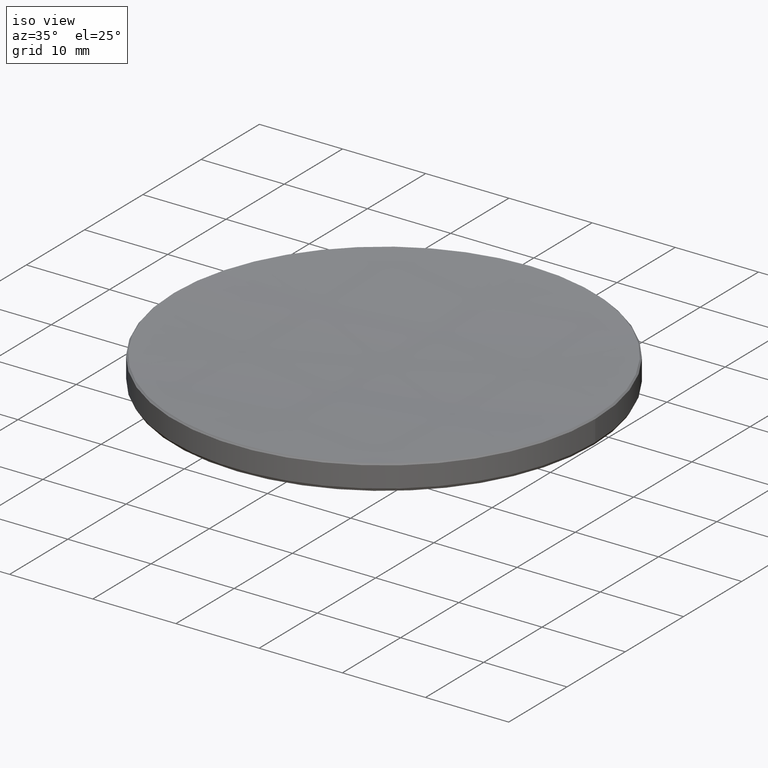
[diagram: clean part render]
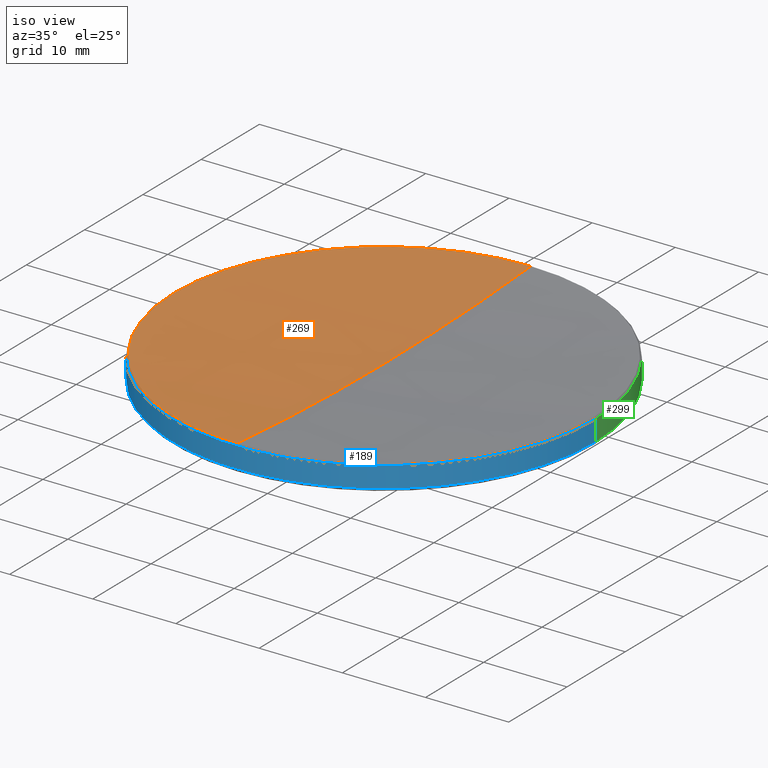
[diagram: same view with three faces highlighted in distinct colors, each labeled with its STEP entity id]
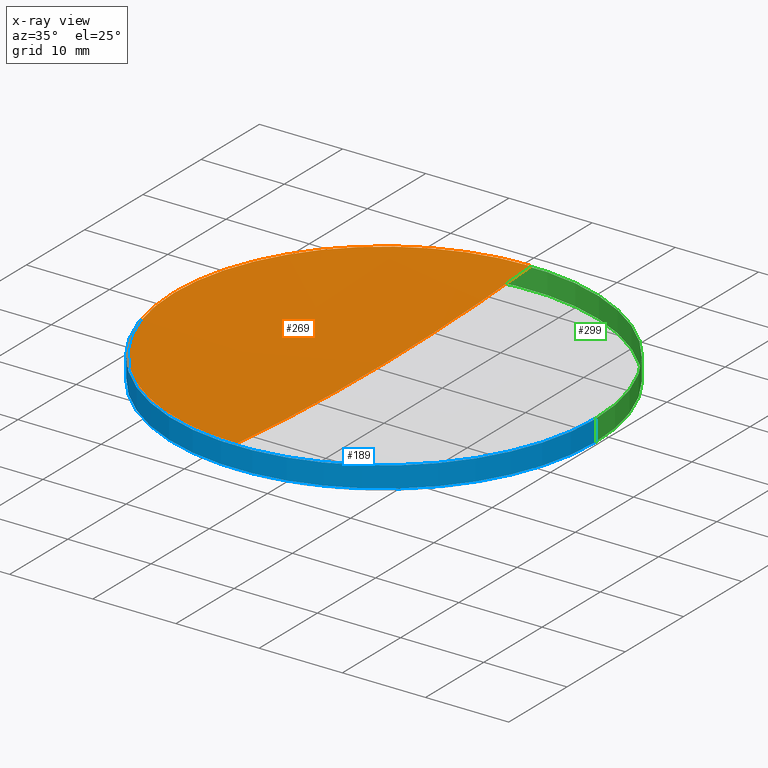
[diagram: x-ray of the same camera — body ghosted, the three highlighted faces saturated]
A machine part, iso view with three faces highlighted in distinct colors.
The next image is the same camera in x-ray (body ghosted, the three faces saturated) — at least one of them is partly hidden behind the body in this view.
Their STEP definitions:

[orange] entity #269 — the highlighted spherical surface has radius 327.59 mm.
#5 = CARTESIAN_POINT ( 'NONE',  ( -25.21438242854474154, 0.000000000000000000, 16.98561757145522577 ) ) ;
#6 = SPHERICAL_SURFACE ( 'NONE', #11, 327.5899999999999750 ) ;
#10 = ORIENTED_EDGE ( 'NONE', *, *, #64, .T. ) ;
#11 = AXIS2_PLACEMENT_3D ( 'NONE', #226, #180, #76 ) ;
#12 = ORIENTED_EDGE ( 'NONE', *, *, #121, .T. ) ;
#14 = EDGE_CURVE ( 'NONE', #105, #297, #69, .T. ) ;
#27 = FACE_OUTER_BOUND ( 'NONE', #187, .T. ) ;
#50 = AXIS2_PLACEMENT_3D ( 'NONE', #241, #75, #145 ) ;
#64 = EDGE_CURVE ( 'NONE', #105, #230, #251, .T. ) ;
#68 = CARTESIAN_POINT ( 'NONE',  ( 0.000000000000000000, 25.21438242854472023, 16.98561757145519735 ) ) ;
#69 = CIRCLE ( 'NONE', #107, 327.5899999999999750 ) ;
#75 = DIRECTION ( 'NONE',  ( 1.000000000000000000, 0.000000000000000000, 0.000000000000000000 ) ) ;
#76 = DIRECTION ( 'NONE',  ( 0.000000000000000000, 1.000000000000000000, 0.000000000000000000 ) ) ;
#91 = CIRCLE ( 'NONE', #283, 25.21438242854474154 ) ;
#105 = VERTEX_POINT ( 'NONE', #278 ) ;
#107 = AXIS2_PLACEMENT_3D ( 'NONE', #147, #115, #201 ) ;
#115 = DIRECTION ( 'NONE',  ( -1.000000000000000000, 1.224646799147353207E-16, 0.000000000000000000 ) ) ;
#121 = EDGE_CURVE ( 'NONE', #146, #297, #91, .T. ) ;
#128 = DIRECTION ( 'NONE',  ( -0.000000000000000000, -0.000000000000000000, 1.000000000000000000 ) ) ;
#129 = DIRECTION ( 'NONE',  ( -0.000000000000000000, -0.000000000000000000, 1.000000000000000000 ) ) ;
#130 = DIRECTION ( 'NONE',  ( 1.000000000000000000, 0.000000000000000000, 0.000000000000000000 ) ) ;
#136 = CIRCLE ( 'NONE', #328, 25.21438242854474154 ) ;
#137 = ORIENTED_EDGE ( 'NONE', *, *, #14, .F. ) ;
#145 = DIRECTION ( 'NONE',  ( 0.000000000000000000, 0.000000000000000000, -1.000000000000000000 ) ) ;
#146 = VERTEX_POINT ( 'NONE', #5 ) ;
#147 = CARTESIAN_POINT ( 'NONE',  ( 0.000000000000000000, 0.000000000000000000, 343.6038090714803843 ) ) ;
#149 = CARTESIAN_POINT ( 'NONE',  ( 0.000000000000000000, 0.000000000000000000, 16.98561757145522577 ) ) ;
#180 = DIRECTION ( 'NONE',  ( -1.000000000000000000, 0.000000000000000000, 0.000000000000000000 ) ) ;
#182 = DIRECTION ( 'NONE',  ( 1.000000000000000000, 0.000000000000000000, 0.000000000000000000 ) ) ;
#187 = EDGE_LOOP ( 'NONE', ( #137, #10, #215, #12 ) ) ;
#201 = DIRECTION ( 'NONE',  ( -1.224646799147353207E-16, -1.000000000000000000, 0.000000000000000000 ) ) ;
#215 = ORIENTED_EDGE ( 'NONE', *, *, #281, .T. ) ;
#226 = CARTESIAN_POINT ( 'NONE',  ( 0.000000000000000000, 0.000000000000000000, 343.6038090714803843 ) ) ;
#230 = VERTEX_POINT ( 'NONE', #68 ) ;
#241 = CARTESIAN_POINT ( 'NONE',  ( 0.000000000000000000, 0.000000000000000000, 343.6038090714803843 ) ) ;
#251 = CIRCLE ( 'NONE', #50, 327.5899999999999750 ) ;
#255 = CARTESIAN_POINT ( 'NONE',  ( 0.000000000000000000, 0.000000000000000000, 16.98561757145522577 ) ) ;
#269 = ADVANCED_FACE ( 'NONE', ( #27 ), #6, .F. ) ;
#278 = CARTESIAN_POINT ( 'NONE',  ( 0.000000000000000000, 2.005910224663407022E-14, 16.01380907148036670 ) ) ;
#281 = EDGE_CURVE ( 'NONE', #230, #146, #136, .T. ) ;
#283 = AXIS2_PLACEMENT_3D ( 'NONE', #149, #128, #182 ) ;
#297 = VERTEX_POINT ( 'NONE', #315 ) ;
#315 = CARTESIAN_POINT ( 'NONE',  ( -3.087871273359455663E-15, -25.21438242854472023, 16.98561757145519735 ) ) ;
#328 = AXIS2_PLACEMENT_3D ( 'NONE', #255, #129, #130 ) ;

[blue] entity #189 — the highlighted cylindrical surface (partial cylindrical patch) has radius 25.4 mm, axis along (-0, -0, -1).
#2 = EDGE_CURVE ( 'NONE', #261, #235, #9, .T. ) ;
#9 = CIRCLE ( 'NONE', #214, 25.39999999999999858 ) ;
#18 = CARTESIAN_POINT ( 'NONE',  ( 25.39999999999999858, 3.110602869834276865E-15, 14.28355508774084548 ) ) ;
#22 = EDGE_CURVE ( 'NONE', #209, #235, #65, .T. ) ;
#31 = ORIENTED_EDGE ( 'NONE', *, *, #252, .T. ) ;
#34 = CIRCLE ( 'NONE', #212, 25.39999999999999858 ) ;
#43 = FACE_OUTER_BOUND ( 'NONE', #83, .T. ) ;
#57 = ORIENTED_EDGE ( 'NONE', *, *, #22, .F. ) ;
#65 = LINE ( 'NONE', #303, #243 ) ;
#80 = CARTESIAN_POINT ( 'NONE',  ( 0.000000000000000000, 0.000000000000000000, 16.79999999999998295 ) ) ;
#83 = EDGE_LOOP ( 'NONE', ( #57, #190, #31, #321 ) ) ;
#87 = LINE ( 'NONE', #113, #250 ) ;
#92 = DIRECTION ( 'NONE',  ( -1.000000000000000000, 0.000000000000000000, 0.000000000000000000 ) ) ;
#99 = DIRECTION ( 'NONE',  ( 1.000000000000000000, 0.000000000000000000, 0.000000000000000000 ) ) ;
#113 = CARTESIAN_POINT ( 'NONE',  ( -25.39999999999999858, 0.000000000000000000, 20.00000000000000000 ) ) ;
#116 = AXIS2_PLACEMENT_3D ( 'NONE', #142, #324, #275 ) ;
#119 = DIRECTION ( 'NONE',  ( -0.000000000000000000, -0.000000000000000000, 1.000000000000000000 ) ) ;
#120 = DIRECTION ( 'NONE',  ( -0.000000000000000000, -0.000000000000000000, -1.000000000000000000 ) ) ;
#142 = CARTESIAN_POINT ( 'NONE',  ( 0.000000000000000000, 0.000000000000000000, 20.00000000000000000 ) ) ;
#176 = CARTESIAN_POINT ( 'NONE',  ( 0.000000000000000000, 0.000000000000000000, 14.28355508774084548 ) ) ;
#183 = CARTESIAN_POINT ( 'NONE',  ( -25.39999999999999858, 0.000000000000000000, 14.28355508774084548 ) ) ;
#189 = ADVANCED_FACE ( 'NONE', ( #43 ), #268, .T. ) ;
#190 = ORIENTED_EDGE ( 'NONE', *, *, #288, .T. ) ;
#204 = DIRECTION ( 'NONE',  ( 0.000000000000000000, 0.000000000000000000, -1.000000000000000000 ) ) ;
#209 = VERTEX_POINT ( 'NONE', #242 ) ;
#212 = AXIS2_PLACEMENT_3D ( 'NONE', #80, #204, #99 ) ;
#214 = AXIS2_PLACEMENT_3D ( 'NONE', #176, #119, #92 ) ;
#218 = DIRECTION ( 'NONE',  ( -0.000000000000000000, -0.000000000000000000, -1.000000000000000000 ) ) ;
#235 = VERTEX_POINT ( 'NONE', #18 ) ;
#242 = CARTESIAN_POINT ( 'NONE',  ( 25.39999999999999858, 3.110602869834276865E-15, 16.79999999999998295 ) ) ;
#243 = VECTOR ( 'NONE', #218, 1000.000000000000000 ) ;
#249 = CARTESIAN_POINT ( 'NONE',  ( -25.39999999999999858, 0.000000000000000000, 16.79999999999998295 ) ) ;
#250 = VECTOR ( 'NONE', #120, 1000.000000000000000 ) ;
#252 = EDGE_CURVE ( 'NONE', #262, #261, #87, .T. ) ;
#261 = VERTEX_POINT ( 'NONE', #183 ) ;
#262 = VERTEX_POINT ( 'NONE', #249 ) ;
#268 = CYLINDRICAL_SURFACE ( 'NONE', #116, 25.39999999999999858 ) ;
#275 = DIRECTION ( 'NONE',  ( -1.000000000000000000, 0.000000000000000000, 0.000000000000000000 ) ) ;
#288 = EDGE_CURVE ( 'NONE', #209, #262, #34, .T. ) ;
#303 = CARTESIAN_POINT ( 'NONE',  ( 25.39999999999999858, 3.110602869834276865E-15, 20.00000000000000000 ) ) ;
#321 = ORIENTED_EDGE ( 'NONE', *, *, #2, .T. ) ;
#324 = DIRECTION ( 'NONE',  ( -0.000000000000000000, -0.000000000000000000, -1.000000000000000000 ) ) ;

[green] entity #299 — the highlighted cylindrical surface (partial cylindrical patch) has radius 25.4 mm, axis along (-0, -0, -1).
#7 = AXIS2_PLACEMENT_3D ( 'NONE', #317, #25, #292 ) ;
#8 = CARTESIAN_POINT ( 'NONE',  ( 0.000000000000000000, 0.000000000000000000, 14.28355508774084548 ) ) ;
#18 = CARTESIAN_POINT ( 'NONE',  ( 25.39999999999999858, 3.110602869834276865E-15, 14.28355508774084548 ) ) ;
#22 = EDGE_CURVE ( 'NONE', #209, #235, #65, .T. ) ;
#25 = DIRECTION ( 'NONE',  ( -0.000000000000000000, -0.000000000000000000, -1.000000000000000000 ) ) ;
#28 = DIRECTION ( 'NONE',  ( -0.000000000000000000, -0.000000000000000000, 1.000000000000000000 ) ) ;
#60 = EDGE_LOOP ( 'NONE', ( #62, #326, #300, #319 ) ) ;
#62 = ORIENTED_EDGE ( 'NONE', *, *, #175, .T. ) ;
#65 = LINE ( 'NONE', #303, #243 ) ;
#74 = CIRCLE ( 'NONE', #282, 25.39999999999999858 ) ;
#87 = LINE ( 'NONE', #113, #250 ) ;
#100 = DIRECTION ( 'NONE',  ( 0.000000000000000000, 0.000000000000000000, -1.000000000000000000 ) ) ;
#104 = CIRCLE ( 'NONE', #207, 25.39999999999999858 ) ;
#113 = CARTESIAN_POINT ( 'NONE',  ( -25.39999999999999858, 0.000000000000000000, 20.00000000000000000 ) ) ;
#120 = DIRECTION ( 'NONE',  ( -0.000000000000000000, -0.000000000000000000, -1.000000000000000000 ) ) ;
#132 = FACE_OUTER_BOUND ( 'NONE', #60, .T. ) ;
#161 = EDGE_CURVE ( 'NONE', #235, #261, #74, .T. ) ;
#175 = EDGE_CURVE ( 'NONE', #262, #209, #104, .T. ) ;
#183 = CARTESIAN_POINT ( 'NONE',  ( -25.39999999999999858, 0.000000000000000000, 14.28355508774084548 ) ) ;
#185 = CYLINDRICAL_SURFACE ( 'NONE', #7, 25.39999999999999858 ) ;
#207 = AXIS2_PLACEMENT_3D ( 'NONE', #228, #100, #314 ) ;
#209 = VERTEX_POINT ( 'NONE', #242 ) ;
#218 = DIRECTION ( 'NONE',  ( -0.000000000000000000, -0.000000000000000000, -1.000000000000000000 ) ) ;
#228 = CARTESIAN_POINT ( 'NONE',  ( 0.000000000000000000, 0.000000000000000000, 16.79999999999998295 ) ) ;
#235 = VERTEX_POINT ( 'NONE', #18 ) ;
#242 = CARTESIAN_POINT ( 'NONE',  ( 25.39999999999999858, 3.110602869834276865E-15, 16.79999999999998295 ) ) ;
#243 = VECTOR ( 'NONE', #218, 1000.000000000000000 ) ;
#249 = CARTESIAN_POINT ( 'NONE',  ( -25.39999999999999858, 0.000000000000000000, 16.79999999999998295 ) ) ;
#250 = VECTOR ( 'NONE', #120, 1000.000000000000000 ) ;
#252 = EDGE_CURVE ( 'NONE', #262, #261, #87, .T. ) ;
#256 = DIRECTION ( 'NONE',  ( -1.000000000000000000, 0.000000000000000000, 0.000000000000000000 ) ) ;
#261 = VERTEX_POINT ( 'NONE', #183 ) ;
#262 = VERTEX_POINT ( 'NONE', #249 ) ;
#282 = AXIS2_PLACEMENT_3D ( 'NONE', #8, #28, #256 ) ;
#292 = DIRECTION ( 'NONE',  ( -1.000000000000000000, 0.000000000000000000, 0.000000000000000000 ) ) ;
#299 = ADVANCED_FACE ( 'NONE', ( #132 ), #185, .T. ) ;
#300 = ORIENTED_EDGE ( 'NONE', *, *, #161, .T. ) ;
#303 = CARTESIAN_POINT ( 'NONE',  ( 25.39999999999999858, 3.110602869834276865E-15, 20.00000000000000000 ) ) ;
#314 = DIRECTION ( 'NONE',  ( 1.000000000000000000, 0.000000000000000000, 0.000000000000000000 ) ) ;
#317 = CARTESIAN_POINT ( 'NONE',  ( 0.000000000000000000, 0.000000000000000000, 20.00000000000000000 ) ) ;
#319 = ORIENTED_EDGE ( 'NONE', *, *, #252, .F. ) ;
#326 = ORIENTED_EDGE ( 'NONE', *, *, #22, .T. ) ;